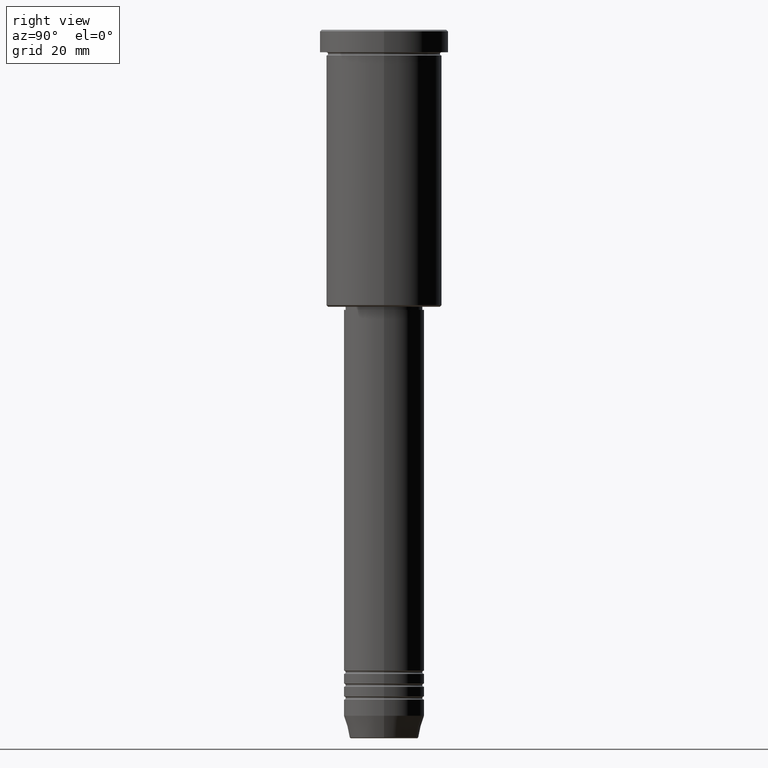
[diagram: clean part render]
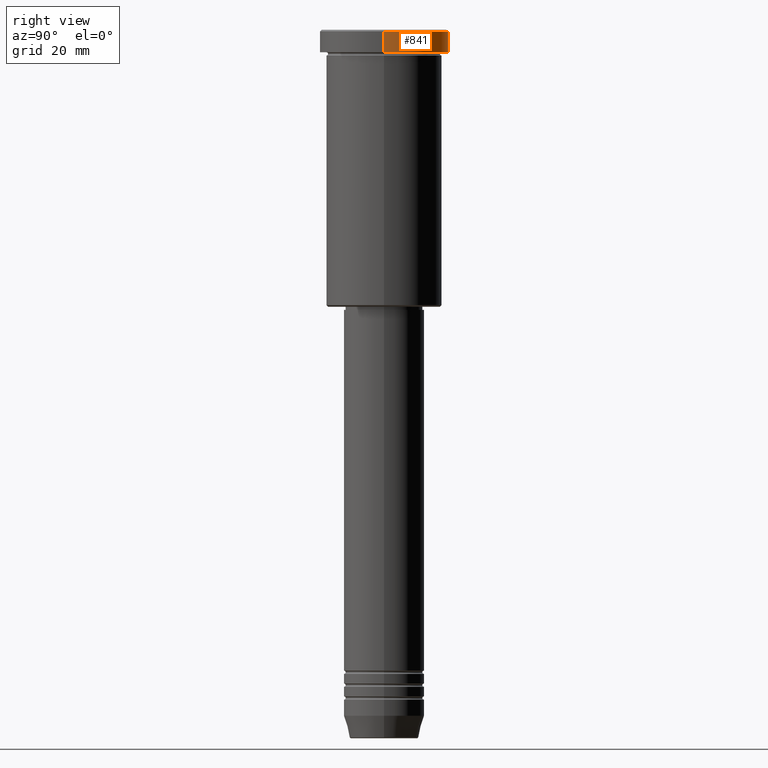
[diagram: same view with one face highlighted and labeled with its STEP entity id]
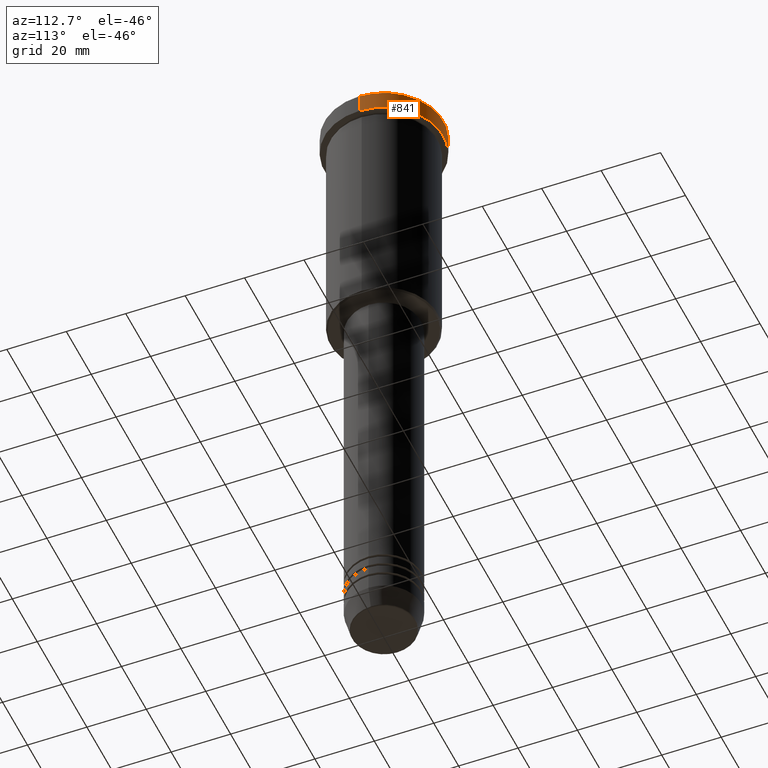
[diagram: same view with one face highlighted and labeled with its STEP entity id]
A machine part, right view. The second image highlights one B-rep face of the part: STEP entity #841.
A second angle (auxiliary view) of the same face is appended — the face is thin or edge-on in the first view.
In plain terms, the highlighted cylindrical surface (partial cylindrical patch) has radius 20 mm, axis along (-0, -0, 1).
Its self-contained STEP definition (entity closure, byte-faithful):
#5 = DIRECTION ( 'NONE',  ( 1.000000000000000000, 0.000000000000000000, 0.000000000000000000 ) ) ;
#12 = DIRECTION ( 'NONE',  ( 0.000000000000000000, 0.000000000000000000, -1.000000000000000000 ) ) ;
#59 = DIRECTION ( 'NONE',  ( 1.000000000000000000, 0.000000000000000000, 0.000000000000000000 ) ) ;
#71 = EDGE_LOOP ( 'NONE', ( #284, #265, #1067, #931 ) ) ;
#74 = CARTESIAN_POINT ( 'NONE',  ( 0.000000000000000000, 0.000000000000000000, 0.000000000000000000 ) ) ;
#80 = DIRECTION ( 'NONE',  ( -0.000000000000000000, -0.000000000000000000, 1.000000000000000000 ) ) ;
#116 = CIRCLE ( 'NONE', #1181, 20.00000000000000000 ) ;
#125 = CARTESIAN_POINT ( 'NONE',  ( 0.000000000000000000, 0.000000000000000000, -0.4999999999999970024 ) ) ;
#163 = VECTOR ( 'NONE', #718, 1000.000000000000000 ) ;
#188 = DIRECTION ( 'NONE',  ( 1.000000000000000000, 0.000000000000000000, 0.000000000000000000 ) ) ;
#202 = EDGE_CURVE ( 'NONE', #868, #863, #403, .T. ) ;
#254 = LINE ( 'NONE', #698, #754 ) ;
#265 = ORIENTED_EDGE ( 'NONE', *, *, #202, .T. ) ;
#284 = ORIENTED_EDGE ( 'NONE', *, *, #933, .T. ) ;
#344 = AXIS2_PLACEMENT_3D ( 'NONE', #593, #406, #5 ) ;
#402 = DIRECTION ( 'NONE',  ( -0.000000000000000000, -0.000000000000000000, 1.000000000000000000 ) ) ;
#403 = LINE ( 'NONE', #879, #163 ) ;
#406 = DIRECTION ( 'NONE',  ( -0.000000000000000000, -0.000000000000000000, 1.000000000000000000 ) ) ;
#409 = CARTESIAN_POINT ( 'NONE',  ( 20.00000000000000000, 0.000000000000000000, -0.4999999999999970024 ) ) ;
#410 = CARTESIAN_POINT ( 'NONE',  ( -20.00000000000000000, 2.449293598294706513E-15, -6.999999999999995559 ) ) ;
#579 = CIRCLE ( 'NONE', #344, 20.00000000000000000 ) ;
#593 = CARTESIAN_POINT ( 'NONE',  ( 0.000000000000000000, 0.000000000000000000, -6.999999999999995559 ) ) ;
#609 = CYLINDRICAL_SURFACE ( 'NONE', #905, 20.00000000000000000 ) ;
#634 = VERTEX_POINT ( 'NONE', #775 ) ;
#698 = CARTESIAN_POINT ( 'NONE',  ( 20.00000000000000000, 0.000000000000000000, 0.000000000000000000 ) ) ;
#704 = VERTEX_POINT ( 'NONE', #409 ) ;
#718 = DIRECTION ( 'NONE',  ( -0.000000000000000000, -0.000000000000000000, 1.000000000000000000 ) ) ;
#754 = VECTOR ( 'NONE', #80, 1000.000000000000000 ) ;
#775 = CARTESIAN_POINT ( 'NONE',  ( 20.00000000000000000, 0.000000000000000000, -6.999999999999995559 ) ) ;
#841 = ADVANCED_FACE ( 'NONE', ( #1064 ), #609, .T. ) ;
#863 = VERTEX_POINT ( 'NONE', #878 ) ;
#868 = VERTEX_POINT ( 'NONE', #410 ) ;
#878 = CARTESIAN_POINT ( 'NONE',  ( -20.00000000000000000, 2.449293598294706513E-15, -0.4999999999999970024 ) ) ;
#879 = CARTESIAN_POINT ( 'NONE',  ( -20.00000000000000000, 2.449293598294706513E-15, 0.000000000000000000 ) ) ;
#902 = EDGE_CURVE ( 'NONE', #634, #704, #254, .T. ) ;
#905 = AXIS2_PLACEMENT_3D ( 'NONE', #74, #402, #59 ) ;
#931 = ORIENTED_EDGE ( 'NONE', *, *, #902, .F. ) ;
#933 = EDGE_CURVE ( 'NONE', #634, #868, #579, .T. ) ;
#981 = EDGE_CURVE ( 'NONE', #863, #704, #116, .T. ) ;
#1064 = FACE_OUTER_BOUND ( 'NONE', #71, .T. ) ;
#1067 = ORIENTED_EDGE ( 'NONE', *, *, #981, .T. ) ;
#1181 = AXIS2_PLACEMENT_3D ( 'NONE', #125, #12, #188 ) ;